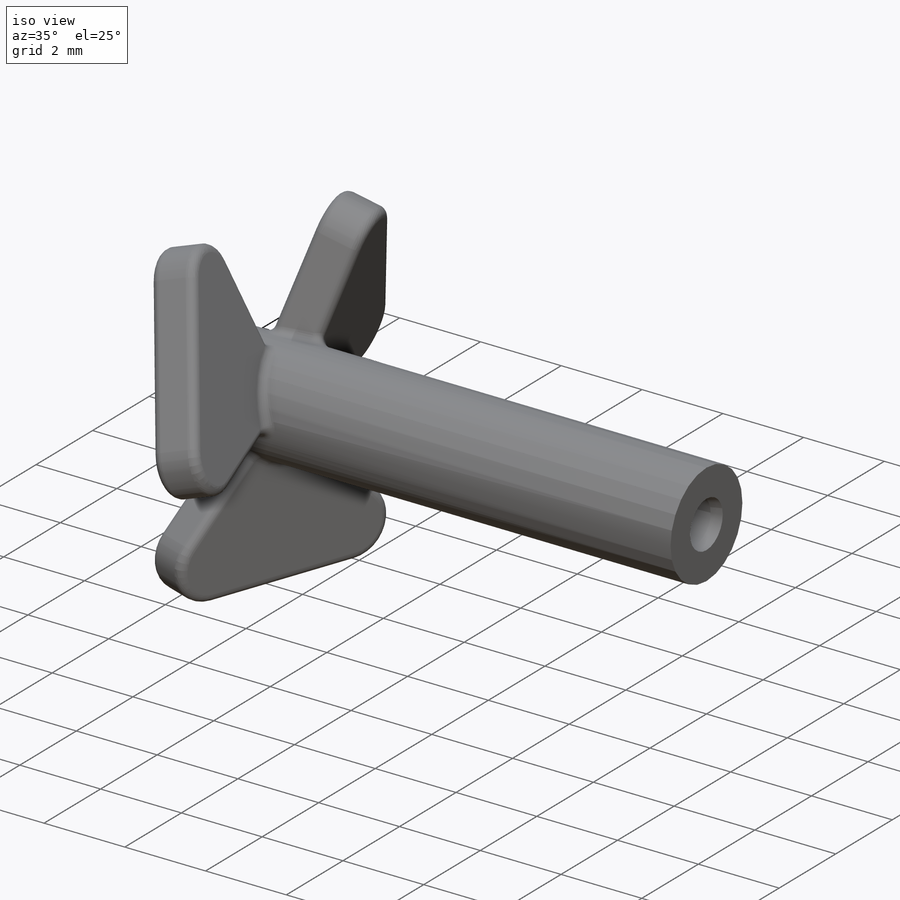
[diagram: iso view]
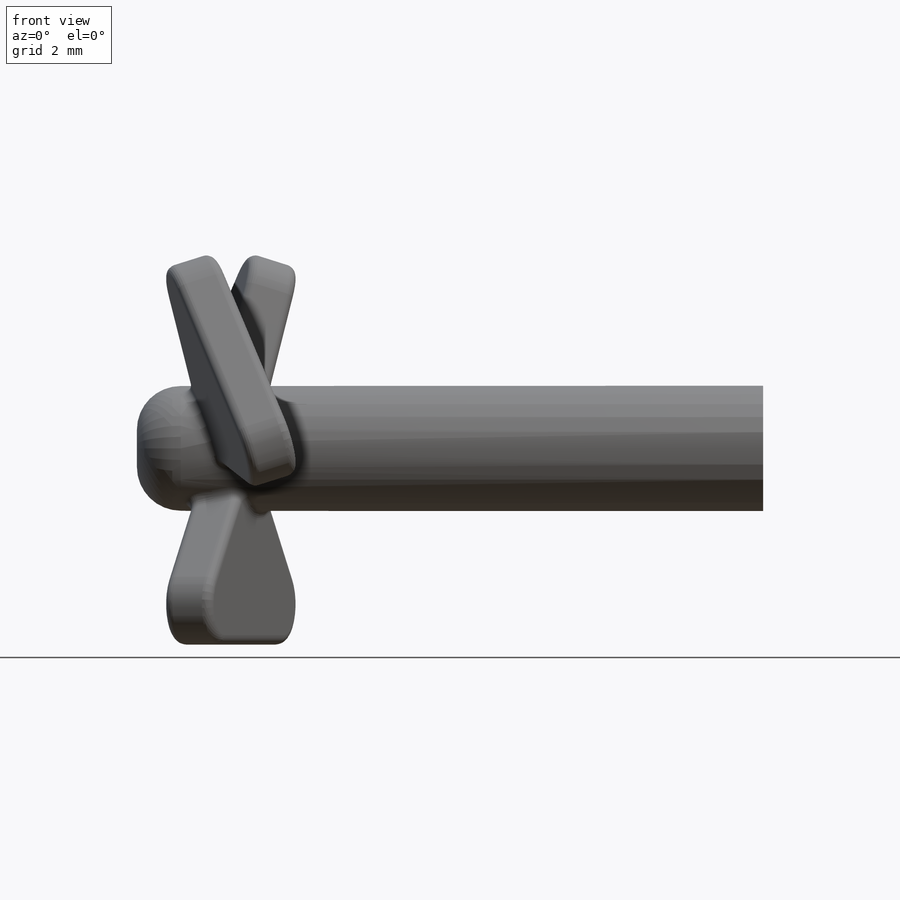
[diagram: front view]
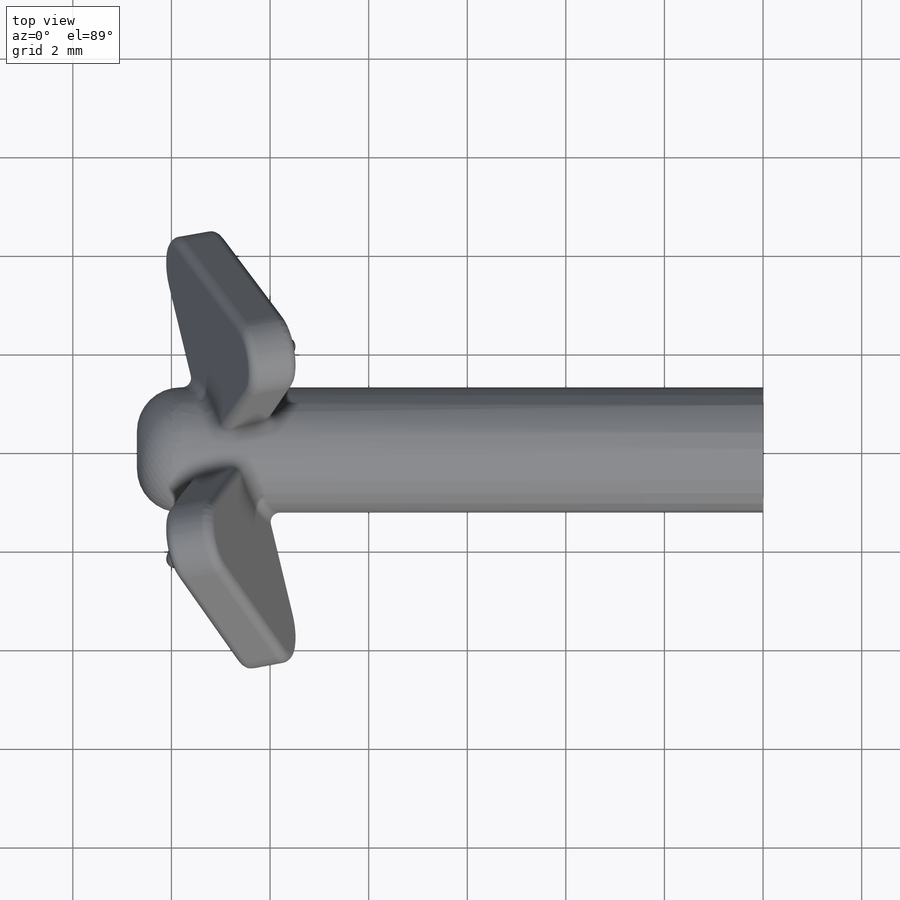
[diagram: top view]
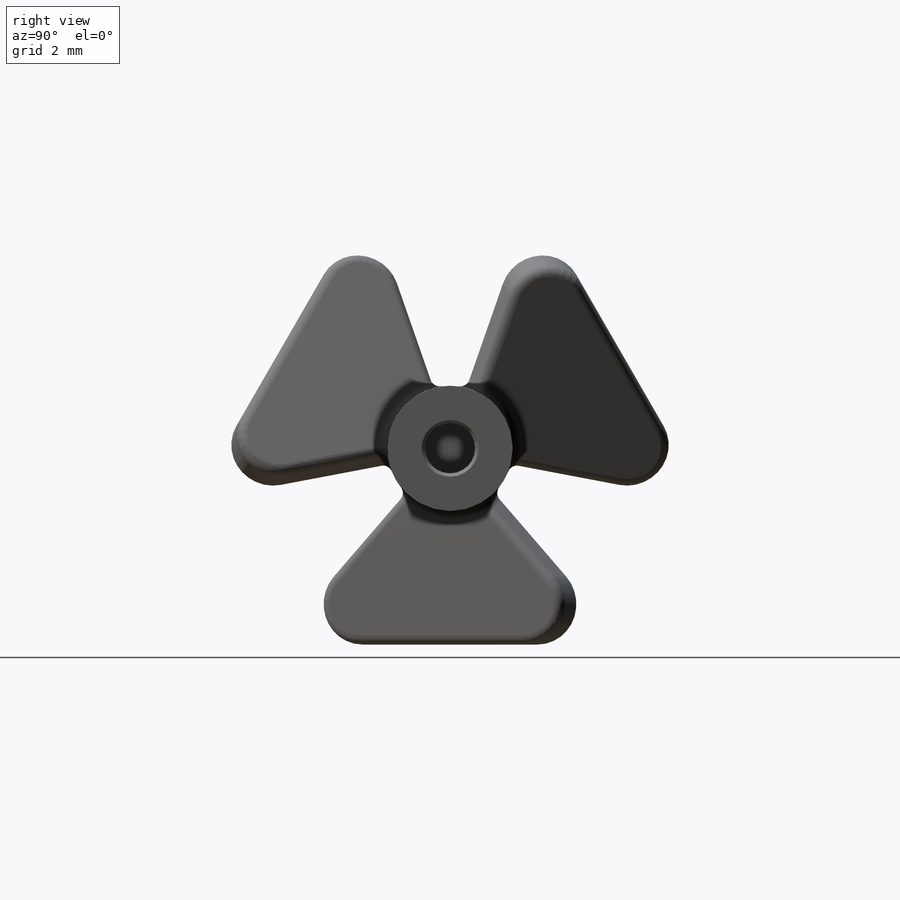
[diagram: right view]
SOLIDWORKS PART (.sldprt)
format: sldprt  version: not decoded by parser v0  size: 432,640 bytes
history: native  units: mm
features: sketch x6, cut_extrude x4, plane x2, fillet x2, chamfer x2, material x1, revolve x1, extrude x1, pattern_circular x1 (+11 scaffold rows collapsed)
feature tree (31):
  scaffold x11  (default folders/planes/origin — collapsed)
  material  "Material <not specified>"
  sketch  "Sketch1"  dims[D1=0.4826mm D2=1.27mm D3=3.175mm D4=12.7mm]
  revolve  "Revolve1"  Angle=360deg
  plane  "Plane1"  Offset=1.905mm
  plane  "blade_plane"
  sketch  "Sketch2"  dims[c1.D2=10.795mm c1.D1=~3.617505mm c2.D1=90.0deg c3.D1=~2.885841mm c4.D1=42.5deg c4.D3=2.54mm c4.D4=1.778mm c4.D5=3.048mm]
  extrude  "Boss-Extrude1"  Depth=1.016mm
  pattern_circular  "CirPattern1"  Count=3 Angle=360deg
  fillet  "Fillet1"  Radius=0.889mm
  fillet  "Fillet3"  Radius=0.1905mm
  sketch  "Sketch5"  dims[D1=1.016mm D2=0.889mm]
  cut_extrude  "Cut-Extrude1"  Depth=3.81mm
  sketch  "Sketch6"
  cut_extrude  "Cut-Extrude2"  Depth=0.889mm
  chamfer  "Chamfer4"  Distance=0.254mm Angle=15deg
  sketch  "Sketch7"  dims[D1=1.016mm D2=0.254mm]
  cut_extrude  "Cut-Extrude3"  Depth=0.127mm
  sketch  "Sketch8"  dims[D1=1.016mm]
  cut_extrude  "Cut-Extrude4"  Depth=3.81mm
  chamfer  "Chamfer5"  Distance=0.254mm Angle=15deg
decode coverage: 16 of 17 modeling features carry decoded parameters
note: ~ marks probable driven/reference dimensions
note: suppression state not decoded; provenance and decode notes live in map.json
